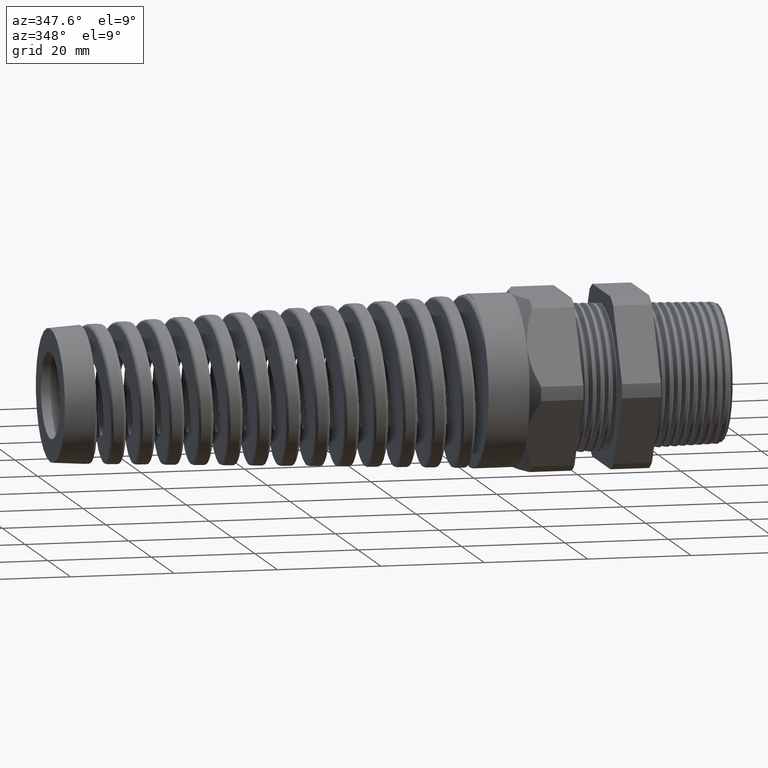
[diagram: clean part render]
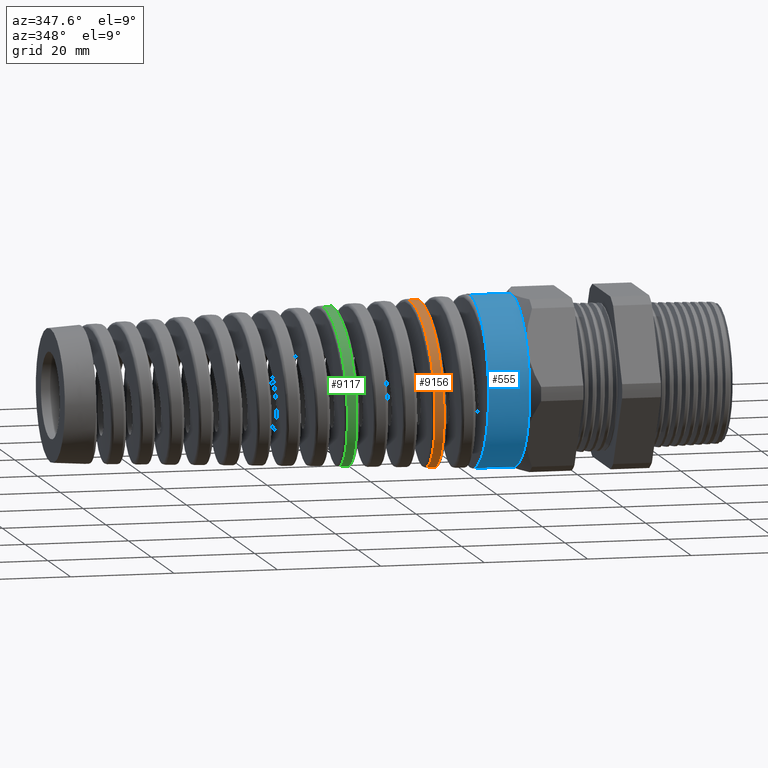
[diagram: same view with three faces highlighted in distinct colors, each labeled with its STEP entity id]
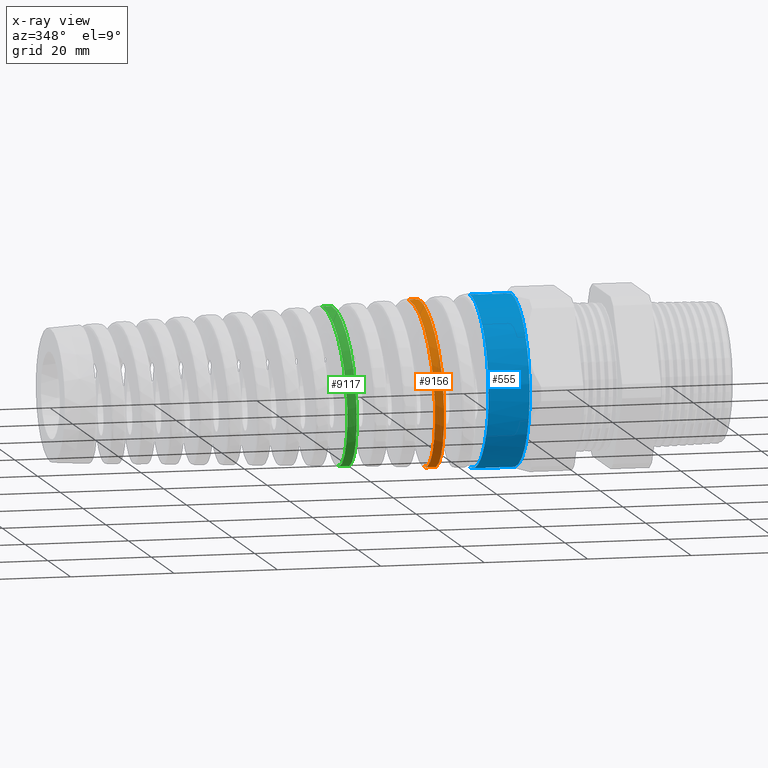
[diagram: x-ray of the same camera — body ghosted, the three highlighted faces saturated]
A machine part, auxiliary view with three faces highlighted in distinct colors.
The next image is the same camera in x-ray (body ghosted, the three faces saturated) — at least one of them is partly hidden behind the body in this view.
Their STEP definitions:

[orange] entity #9156 — the highlighted conical surface has half-angle 2.5 deg.
#8970 = VERTEX_POINT ( 'NONE', #12563 ) ;
#8991 = VERTEX_POINT ( 'NONE', #12755 ) ;
#9030 = EDGE_CURVE ( 'NONE', #9076, #9077, #13120, .T. ) ;
#9076 = VERTEX_POINT ( 'NONE', #13432 ) ;
#9077 = VERTEX_POINT ( 'NONE', #13431 ) ;
#9079 = EDGE_CURVE ( 'NONE', #8970, #8991, #13545, .T. ) ;
#9156 = ADVANCED_FACE ( 'NONE', ( #14259 ), #14289, .T. ) ;
#9157 = EDGE_LOOP ( 'NONE', ( #9158, #9159, #9162, #9163 ) ) ;
#9158 = ORIENTED_EDGE ( 'NONE', *, *, #9030, .F. ) ;
#9159 = ORIENTED_EDGE ( 'NONE', *, *, #9160, .T. ) ;
#9160 = EDGE_CURVE ( 'NONE', #9076, #8970, #14365, .T. ) ;
#9162 = ORIENTED_EDGE ( 'NONE', *, *, #9079, .T. ) ;
#9163 = ORIENTED_EDGE ( 'NONE', *, *, #9164, .T. ) ;
#9164 = EDGE_CURVE ( 'NONE', #8991, #9077, #14402, .T. ) ;
#12563 = CARTESIAN_POINT ( 'NONE',  ( -1.958930698565917000, 4.707388627406056900E-015, -0.6312724812582052300 ) ) ;
#12755 = CARTESIAN_POINT ( 'NONE',  ( -1.890555728699595800, 6.316411324171828600E-016, -0.6342577969139099300 ) ) ;
#13117 = DIRECTION ( 'NONE',  ( 0.9990482215818576900, 5.341834311772761800E-018, 0.04361938736533631200 ) ) ;
#13118 = VECTOR ( 'NONE', #13117, 39.37007874015748100 ) ;
#13119 = CARTESIAN_POINT ( 'NONE',  ( -1.530000000000000000, 7.960204194457796700E-017, 0.6500000000000000200 ) ) ;
#13120 = LINE ( 'NONE', #13119, #13118 ) ;
#13431 = CARTESIAN_POINT ( 'NONE',  ( -2.000412960044929200, -6.592135627195211400E-013, 0.6294613266080539800 ) ) ;
#13432 = CARTESIAN_POINT ( 'NONE',  ( -2.069110531029798600, 5.280273696233599700E-013, 0.6264619258833302700 ) ) ;
#13542 = DIRECTION ( 'NONE',  ( 0.9990482215818576900, 0.0000000000000000000, -0.04361938736533631200 ) ) ;
#13543 = VECTOR ( 'NONE', #13542, 39.37007874015748100 ) ;
#13544 = CARTESIAN_POINT ( 'NONE',  ( -1.530000000000000000, 0.0000000000000000000, -0.6500000000000000200 ) ) ;
#13545 = LINE ( 'NONE', #13544, #13543 ) ;
#14259 = FACE_OUTER_BOUND ( 'NONE', #9157, .T. ) ;
#14285 = DIRECTION ( 'NONE',  ( 0.0000000000000000000, 0.0000000000000000000, -1.000000000000000000 ) ) ;
#14286 = DIRECTION ( 'NONE',  ( 1.000000000000000000, 0.0000000000000000000, 0.0000000000000000000 ) ) ;
#14287 = CARTESIAN_POINT ( 'NONE',  ( -1.530000000000000000, 0.0000000000000000000, 0.0000000000000000000 ) ) ;
#14288 = AXIS2_PLACEMENT_3D ( 'NONE', #14287, #14286, #14285 ) ;
#14289 = CONICAL_SURFACE ( 'NONE', #14288, 0.6500000000000000200, 0.04363323129985854900 ) ;
#14322 = CARTESIAN_POINT ( 'NONE',  ( -1.970366705580078400, -0.2026086189763456900, -0.5987526755416207000 ) ) ;
#14323 = CARTESIAN_POINT ( 'NONE',  ( -1.973798796351883700, -0.2593925235792374200, -0.5751707168041528800 ) ) ;
#14324 = CARTESIAN_POINT ( 'NONE',  ( -1.974944391652800000, -0.2779688656980096600, -0.5663769778908044300 ) ) ;
#14325 = CARTESIAN_POINT ( 'NONE',  ( -1.977244264166441800, -0.3144007408641184600, -0.5468776079463502100 ) ) ;
#14326 = CARTESIAN_POINT ( 'NONE',  ( -1.978400485899685800, -0.3322781286135868500, -0.5361420015431203100 ) ) ;
#14327 = CARTESIAN_POINT ( 'NONE',  ( -1.981829454871312000, -0.3836467946678344700, -0.5017540686698129800 ) ) ;
#14328 = CARTESIAN_POINT ( 'NONE',  ( -1.984087722302071900, -0.4153044620572304300, -0.4757443521122573500 ) ) ;
#14329 = CARTESIAN_POINT ( 'NONE',  ( -1.987514047835669400, -0.4589279099394739100, -0.4321328756890627200 ) ) ;
#14330 = CARTESIAN_POINT ( 'NONE',  ( -1.988667307965329900, -0.4728746718844868400, -0.4167571673759178900 ) ) ;
#14331 = CARTESIAN_POINT ( 'NONE',  ( -1.990976802450795400, -0.4991668299549774600, -0.3847108412708304900 ) ) ;
#14332 = CARTESIAN_POINT ( 'NONE',  ( -1.992124748351662200, -0.5114244672861011400, -0.3681618371446863700 ) ) ;
#14333 = CARTESIAN_POINT ( 'NONE',  ( -1.995563200947563500, -0.5456115453045896600, -0.3169852889464954700 ) ) ;
#14334 = CARTESIAN_POINT ( 'NONE',  ( -1.997849264186671600, -0.5649795630636179600, -0.2808427063811177500 ) ) ;
#14335 = CARTESIAN_POINT ( 'NONE',  ( -2.001307483199248300, -0.5887626953254853100, -0.2235148638383464000 ) ) ;
#14336 = CARTESIAN_POINT ( 'NONE',  ( -2.002463709344215900, -0.5957796912735092700, -0.2039096332951168800 ) ) ;
#14337 = CARTESIAN_POINT ( 'NONE',  ( -2.004750809816396600, -0.6077351140146802800, -0.1645142119648593800 ) ) ;
#14338 = CARTESIAN_POINT ( 'NONE',  ( -2.007025196508061000, -0.6177045627571399200, -0.1247240943228429300 ) ) ;
#14339 = CARTESIAN_POINT ( 'NONE',  ( -2.009301868193179800, -0.6237581595304196900, -0.08415729064731268500 ) ) ;
#14340 = CARTESIAN_POINT ( 'NONE',  ( -2.011592602547406500, -0.6278255040481913700, -0.04319726055372658700 ) ) ;
#14341 = CARTESIAN_POINT ( 'NONE',  ( -2.012751270878575300, -0.6288638844043780200, -0.02240829257500433600 ) ) ;
#14342 = CARTESIAN_POINT ( 'NONE',  ( -2.016217016166024200, -0.6288817787610110300, 0.03967444468489805100 ) ) ;
#14343 = CARTESIAN_POINT ( 'NONE',  ( -2.018503868536615000, -0.6248466378386952100, 0.08048402867126502900 ) ) ;
#14344 = CARTESIAN_POINT ( 'NONE',  ( -2.021949596791043500, -0.6128791770235484400, 0.1408494993631021200 ) ) ;
#14345 = CARTESIAN_POINT ( 'NONE',  ( -2.023100236183431400, -0.6078971808369888500, 0.1608288568125292300 ) ) ;
#14346 = CARTESIAN_POINT ( 'NONE',  ( -2.025412096484811500, -0.5958862322603042400, 0.2004934883644861900 ) ) ;
#14347 = CARTESIAN_POINT ( 'NONE',  ( -2.026566865879292600, -0.5888868870238649400, 0.2200463738172486700 ) ) ;
#14348 = CARTESIAN_POINT ( 'NONE',  ( -2.029999231315115600, -0.5652757219325481600, 0.2770412603802301400 ) ) ;
#14349 = CARTESIAN_POINT ( 'NONE',  ( -2.032265588777614000, -0.5459739875589030300, 0.3131825426881985100 ) ) ;
#14350 = CARTESIAN_POINT ( 'NONE',  ( -2.035712439806290200, -0.5116471722228780300, 0.3645893550114901500 ) ) ;
#14351 = CARTESIAN_POINT ( 'NONE',  ( -2.036875596136789000, -0.4992261457261625300, 0.3813398266785633100 ) ) ;
#14352 = CARTESIAN_POINT ( 'NONE',  ( -2.039187075928885500, -0.4729970276531412800, 0.4132721852677342900 ) ) ;
#14353 = CARTESIAN_POINT ( 'NONE',  ( -2.040337208739956900, -0.4591812147032842100, 0.4284889924853093100 ) ) ;
#14354 = CARTESIAN_POINT ( 'NONE',  ( -2.043785041981874600, -0.4156804638701175900, 0.4719440680703081400 ) ) ;
#14355 = CARTESIAN_POINT ( 'NONE',  ( -2.046079954125362000, -0.3839623237229014600, 0.4980085115932666500 ) ) ;
#14356 = CARTESIAN_POINT ( 'NONE',  ( -2.050718110655178200, -0.3148773917893911700, 0.5440934484020651900 ) ) ;
#14357 = CARTESIAN_POINT ( 'NONE',  ( -2.052997393807910200, -0.2785342371168184100, 0.5634132977116137500 ) ) ;
#14358 = CARTESIAN_POINT ( 'NONE',  ( -2.056423923930004200, -0.2217136022889058500, 0.5868660663867316700 ) ) ;
#14359 = CARTESIAN_POINT ( 'NONE',  ( -2.057568226468049500, -0.2023706370278554600, 0.5937660340004610200 ) ) ;
#14360 = CARTESIAN_POINT ( 'NONE',  ( -2.059874049162550700, -0.1628625355781478900, 0.6056909638474965400 ) ) ;
#14361 = CARTESIAN_POINT ( 'NONE',  ( -2.061040348768217600, -0.1426120603430446600, 0.6107237570056561800 ) ) ;
#14362 = CARTESIAN_POINT ( 'NONE',  ( -2.064509134330073400, -0.08188557199571804000, 0.6226582738036048300 ) ) ;
#14363 = CARTESIAN_POINT ( 'NONE',  ( -2.066803116654560000, -0.04109382389174452000, 0.6265626697706683200 ) ) ;
#14364 = CARTESIAN_POINT ( 'NONE',  ( -2.069110531029798600, 5.280273696233599700E-013, 0.6264619258833302700 ) ) ;
#14365 = B_SPLINE_CURVE_WITH_KNOTS ( 'NONE', 3,
 ( #14364, #14363, #14362, #14361, #14360, #14359, #14358, #14357, #14356, #14355, #14354, #14353, #14352, #14351, #14350, #14349, #14348, #14347, #14346, #14345, #14344, #14343, #14342, #14341, #14340, #14339, #14338, #14337, #14336, #14335, #14334, #14333, #14332, #14331, #14330, #14329, #14328, #14327, #14326, #14325, #14324, #14323, #14322, #14406, #14405, #14404, #14403 ),
 .UNSPECIFIED., .F., .F.,
 ( 4, 2, 2, 2, 2, 2, 2, 2, 2, 2, 2, 2, 2, 1, 2, 2, 2, 2, 2, 2, 2, 2, 2, 4 ),
 ( 1.045933138598378600, 1.049108973620190200, 1.050696891131095900, 1.052284808642001800, 1.055460643663813400, 1.058636478685625000, 1.060224396196530700, 1.061812313707436700, 1.064988148729248300, 1.066576066240154000, 1.068163983751059900, 1.071339818772871500, 1.072927736283777200, 1.074515653794682900, 1.076103571305588900, 1.077691488816494600, 1.080867323838306200, 1.082455241349212100, 1.084043158860117800, 1.087218993881929400, 1.088806911392835400, 1.090394828903741100, 1.093570663925552700, 1.096746498947364300 ),
 .UNSPECIFIED. ) ;
#14366 = CARTESIAN_POINT ( 'NONE',  ( -1.970562705801800900, -0.4765000843964577500, 0.4153762777832686900 ) ) ;
#14367 = CARTESIAN_POINT ( 'NONE',  ( -1.968282250384741000, -0.5025975682315220200, 0.3835163656670446100 ) ) ;
#14368 = CARTESIAN_POINT ( 'NONE',  ( -1.964842432571728000, -0.5369495820402446800, 0.3320981115935040000 ) ) ;
#14369 = CARTESIAN_POINT ( 'NONE',  ( -1.963692950505799600, -0.5475955112490120700, 0.3143496200701861300 ) ) ;
#14370 = CARTESIAN_POINT ( 'NONE',  ( -1.961382306133006700, -0.5672254873906389400, 0.2775952341002571000 ) ) ;
#14371 = CARTESIAN_POINT ( 'NONE',  ( -1.960232707072490500, -0.5761070858547241400, 0.2587663578039812700 ) ) ;
#14372 = CARTESIAN_POINT ( 'NONE',  ( -1.956812093121506100, -0.5997616948654612700, 0.2015255576855307700 ) ) ;
#14373 = CARTESIAN_POINT ( 'NONE',  ( -1.954554879205538700, -0.6116981679515918200, 0.1621341146499689900 ) ) ;
#14374 = CARTESIAN_POINT ( 'NONE',  ( -1.951122530098133200, -0.6237991934218509700, 0.1011880733774773200 ) ) ;
#14375 = CARTESIAN_POINT ( 'NONE',  ( -1.949965005306098800, -0.6268620424694730800, 0.08045687783462438000 ) ) ;
#14376 = CARTESIAN_POINT ( 'NONE',  ( -1.947668160475235100, -0.6308890503866398900, 0.03917952530085143400 ) ) ;
#14377 = CARTESIAN_POINT ( 'NONE',  ( -1.946525113900075200, -0.6318765564042669900, 0.01856848894774905400 ) ) ;
#14378 = CARTESIAN_POINT ( 'NONE',  ( -1.943097258171766000, -0.6318292718442412000, -0.04318272985030284500 ) ) ;
#14379 = CARTESIAN_POINT ( 'NONE',  ( -1.940812169316893400, -0.6278117732448740300, -0.08425441063127280000 ) ) ;
#14380 = CARTESIAN_POINT ( 'NONE',  ( -1.936193576435572700, -0.6114787009437732100, -0.1661179737491833300 ) ) ;
#14381 = CARTESIAN_POINT ( 'NONE',  ( -1.933934088797981900, -0.5994327368124838800, -0.2055708955562582100 ) ) ;
#14382 = CARTESIAN_POINT ( 'NONE',  ( -1.930532539587360700, -0.5757840575522784600, -0.2626182729404777900 ) ) ;
#14383 = CARTESIAN_POINT ( 'NONE',  ( -1.929396857085693900, -0.5669643302358338100, -0.2812761167963772100 ) ) ;
#14384 = CARTESIAN_POINT ( 'NONE',  ( -1.927108681040727400, -0.5474091835889991500, -0.3178590759847684800 ) ) ;
#14385 = CARTESIAN_POINT ( 'NONE',  ( -1.925952824695128300, -0.5366309848863191100, -0.3358286741947692500 ) ) ;
#14386 = CARTESIAN_POINT ( 'NONE',  ( -1.922516979729501400, -0.5020940367715098800, -0.3874682124596479100 ) ) ;
#14387 = CARTESIAN_POINT ( 'NONE',  ( -1.920244108478053000, -0.4759753356215641900, -0.4192766156998938800 ) ) ;
#14388 = CARTESIAN_POINT ( 'NONE',  ( -1.916810786602148900, -0.4322011757774125200, -0.4630966925417010500 ) ) ;
#14389 = CARTESIAN_POINT ( 'NONE',  ( -1.915658852116123300, -0.4167843384690930700, -0.4770938988219422000 ) ) ;
#14390 = CARTESIAN_POINT ( 'NONE',  ( -1.913358829338516200, -0.3845872456112265400, -0.5035351024177439100 ) ) ;
#14391 = CARTESIAN_POINT ( 'NONE',  ( -1.912220415330519600, -0.3679627311866225900, -0.5158606808322850900 ) ) ;
#14392 = CARTESIAN_POINT ( 'NONE',  ( -1.908817921602590900, -0.3165620058322016800, -0.5502363706851850500 ) ) ;
#14393 = CARTESIAN_POINT ( 'NONE',  ( -1.906566369453998500, -0.2802729120310286600, -0.5697097795886600900 ) ) ;
#14394 = CARTESIAN_POINT ( 'NONE',  ( -1.903134291035428700, -0.2227421453692705600, -0.5936361617859123900 ) ) ;
#14395 = CARTESIAN_POINT ( 'NONE',  ( -1.901981352638060200, -0.2030436125258310300, -0.6007092059810293900 ) ) ;
#14396 = CARTESIAN_POINT ( 'NONE',  ( -1.899696551499076700, -0.1634698541189652200, -0.6127661207369754500 ) ) ;
#14397 = CARTESIAN_POINT ( 'NONE',  ( -1.897419998099724400, -0.1235059987296587400, -0.6228300228156133900 ) ) ;
#14398 = CARTESIAN_POINT ( 'NONE',  ( -1.895141353462950400, -0.08277529817580141200, -0.6289707997150904000 ) ) ;
#14399 = CARTESIAN_POINT ( 'NONE',  ( -1.892854580922781200, -0.04165669996339276700, -0.6331250730874865600 ) ) ;
#14400 = CARTESIAN_POINT ( 'NONE',  ( -1.891701683773648000, -0.02079971279709954800, -0.6342077634348461900 ) ) ;
#14401 = CARTESIAN_POINT ( 'NONE',  ( -1.890555728699595800, 6.316411324171828600E-016, -0.6342577969139099300 ) ) ;
#14402 = B_SPLINE_CURVE_WITH_KNOTS ( 'NONE', 3,
 ( #14401, #14400, #14399, #14398, #14397, #14396, #14395, #14394, #14393, #14392, #14391, #14390, #14389, #14388, #14387, #14386, #14385, #14384, #14383, #14382, #14381, #14380, #14379, #14378, #14377, #14376, #14375, #14374, #14373, #14372, #14371, #14370, #14369, #14368, #14367, #14366, #14448, #14447, #14446, #14445, #14444, #14443, #14442, #14441, #14440, #14439, #14438, #14437, #14436, #14435 ),
 .UNSPECIFIED., .F., .F.,
 ( 4, 2, 1, 2, 2, 2, 2, 2, 2, 2, 2, 2, 2, 2, 2, 2, 2, 2, 2, 2, 1, 2, 2, 2, 2, 4 ),
 ( 0.1333782927639132200, 0.1349706807159501700, 0.1365630686679871200, 0.1381554566200240700, 0.1397478445720610200, 0.1429326204761349500, 0.1445250084281719000, 0.1461173963802088500, 0.1493021722842827500, 0.1508945602363197000, 0.1524869481883566700, 0.1556717240924305700, 0.1588564999965044700, 0.1604488879485414500, 0.1620412759005783700, 0.1652260518046523000, 0.1668184397566892500, 0.1684108277087262000, 0.1715956036128001000, 0.1731879915648370500, 0.1747803795168740000, 0.1763727674689109500, 0.1779651554209479000, 0.1811499313250218000, 0.1827423192770587800, 0.1843347072290957300 ),
 .UNSPECIFIED. ) ;
#14403 = CARTESIAN_POINT ( 'NONE',  ( -1.958930698565917000, 4.707388627406056900E-015, -0.6312724812582052300 ) ) ;
#14404 = CARTESIAN_POINT ( 'NONE',  ( -1.961198789523230100, -0.04097636029582271000, -0.6311734542684073200 ) ) ;
#14405 = CARTESIAN_POINT ( 'NONE',  ( -1.963469453227702400, -0.08195584778243995800, -0.6271054537417147800 ) ) ;
#14406 = CARTESIAN_POINT ( 'NONE',  ( -1.968086248576229200, -0.1633562801228417300, -0.6107686645396169800 ) ) ;
#14435 = CARTESIAN_POINT ( 'NONE',  ( -2.000412960044929200, -6.592135627195211400E-013, 0.6294613266080539800 ) ) ;
#14436 = CARTESIAN_POINT ( 'NONE',  ( -1.999268675063977000, -0.02065652259122164100, 0.6295112871692566400 ) ) ;
#14437 = CARTESIAN_POINT ( 'NONE',  ( -1.998113291414306900, -0.04149651587174736000, 0.6285373479339411200 ) ) ;
#14438 = CARTESIAN_POINT ( 'NONE',  ( -1.995801896999818400, -0.08292891329156078200, 0.6245246447460179900 ) ) ;
#14439 = CARTESIAN_POINT ( 'NONE',  ( -1.994653186681758700, -0.1033904364771828400, 0.6215088124967248500 ) ) ;
#14440 = CARTESIAN_POINT ( 'NONE',  ( -1.991212006933419800, -0.1640329631994876500, 0.6095235286818093700 ) ) ;
#14441 = CARTESIAN_POINT ( 'NONE',  ( -1.988923575606346800, -0.2034789831401109500, 0.5976444355835495200 ) ) ;
#14442 = CARTESIAN_POINT ( 'NONE',  ( -1.985456729368703300, -0.2611322118099911300, 0.5738347710794410300 ) ) ;
#14443 = CARTESIAN_POINT ( 'NONE',  ( -1.984300103397316700, -0.2800285738398381500, 0.5649061208673854500 ) ) ;
#14444 = CARTESIAN_POINT ( 'NONE',  ( -1.982012604653093900, -0.3164916105031139200, 0.5454299887467318800 ) ) ;
#14445 = CARTESIAN_POINT ( 'NONE',  ( -1.979738782556263600, -0.3518296879929746500, 0.5242545477433204800 ) ) ;
#14446 = CARTESIAN_POINT ( 'NONE',  ( -1.977464177183787800, -0.3849470794732047800, 0.4997274420177715300 ) ) ;
#14447 = CARTESIAN_POINT ( 'NONE',  ( -1.975175851561906200, -0.4169365820118353700, 0.4734993628410406100 ) ) ;
#14448 = CARTESIAN_POINT ( 'NONE',  ( -1.974018328828255100, -0.4324480445766877300, 0.4594494796755322400 ) ) ;

[blue] entity #555 — the highlighted cylindrical surface (partial cylindrical patch) has radius 16.51 mm, axis along (1, 0, 0).
#555 = ADVANCED_FACE ( 'NONE', ( #1103 ), #1317, .T. ) ;
#586 = EDGE_CURVE ( 'NONE', #20455, #5202, #1275, .T. ) ;
#607 = ORIENTED_EDGE ( 'NONE', *, *, #671, .F. ) ;
#616 = ORIENTED_EDGE ( 'NONE', *, *, #667, .F. ) ;
#667 = EDGE_CURVE ( 'NONE', #5193, #18178, #1258, .T. ) ;
#671 = EDGE_CURVE ( 'NONE', #18178, #20455, #1254, .T. ) ;
#1027 = ORIENTED_EDGE ( 'NONE', *, *, #5192, .F. ) ;
#1028 = EDGE_LOOP ( 'NONE', ( #1027, #11837, #15251, #15293, #607, #616 ) ) ;
#1103 = FACE_OUTER_BOUND ( 'NONE', #1028, .T. ) ;
#1250 = DIRECTION ( 'NONE',  ( 0.0000000000000000000, 0.0000000000000000000, -1.000000000000000000 ) ) ;
#1251 = DIRECTION ( 'NONE',  ( 1.000000000000000000, 0.0000000000000000000, 0.0000000000000000000 ) ) ;
#1252 = CARTESIAN_POINT ( 'NONE',  ( -1.293779527559055300, 0.0000000000000000000, 0.0000000000000000000 ) ) ;
#1253 = AXIS2_PLACEMENT_3D ( 'NONE', #1252, #1251, #1250 ) ;
#1254 = CIRCLE ( 'NONE', #1253, 0.6500000000000000200 ) ;
#1255 = DIRECTION ( 'NONE',  ( 0.0000000000000000000, 0.0000000000000000000, -1.000000000000000000 ) ) ;
#1256 = DIRECTION ( 'NONE',  ( 1.000000000000000000, 0.0000000000000000000, 0.0000000000000000000 ) ) ;
#1257 = AXIS2_PLACEMENT_3D ( 'NONE', #1263, #1256, #1255 ) ;
#1258 = CIRCLE ( 'NONE', #1257, 0.6500000000000000200 ) ;
#1263 = CARTESIAN_POINT ( 'NONE',  ( -1.293779527559055300, 0.0000000000000000000, 0.0000000000000000000 ) ) ;
#1271 = DIRECTION ( 'NONE',  ( 0.0000000000000000000, 0.0000000000000000000, -1.000000000000000000 ) ) ;
#1272 = DIRECTION ( 'NONE',  ( 1.000000000000000000, 0.0000000000000000000, 0.0000000000000000000 ) ) ;
#1273 = CARTESIAN_POINT ( 'NONE',  ( -1.293779527559055300, 0.0000000000000000000, 0.0000000000000000000 ) ) ;
#1274 = AXIS2_PLACEMENT_3D ( 'NONE', #1273, #1272, #1271 ) ;
#1275 = CIRCLE ( 'NONE', #1274, 0.6500000000000000200 ) ;
#1313 = DIRECTION ( 'NONE',  ( 0.0000000000000000000, 0.0000000000000000000, -1.000000000000000000 ) ) ;
#1314 = DIRECTION ( 'NONE',  ( 1.000000000000000000, 0.0000000000000000000, 0.0000000000000000000 ) ) ;
#1315 = CARTESIAN_POINT ( 'NONE',  ( 0.0000000000000000000, 0.0000000000000000000, 0.0000000000000000000 ) ) ;
#1316 = AXIS2_PLACEMENT_3D ( 'NONE', #1315, #1314, #1313 ) ;
#1317 = CYLINDRICAL_SURFACE ( 'NONE', #1316, 0.6500000000000000200 ) ;
#5138 = VERTEX_POINT ( 'NONE', #11623 ) ;
#5139 = VERTEX_POINT ( 'NONE', #11622 ) ;
#5192 = EDGE_CURVE ( 'NONE', #5138, #5193, #11718, .T. ) ;
#5193 = VERTEX_POINT ( 'NONE', #11714 ) ;
#5202 = VERTEX_POINT ( 'NONE', #11759 ) ;
#5204 = EDGE_CURVE ( 'NONE', #5139, #5202, #11758, .T. ) ;
#6616 = CARTESIAN_POINT ( 'NONE',  ( -1.293779527559055300, -0.5629165124598851700, -0.3250000000000002300 ) ) ;
#11622 = CARTESIAN_POINT ( 'NONE',  ( -1.606986927084339500, 0.0000000000000000000, -0.6500000000000000200 ) ) ;
#11623 = CARTESIAN_POINT ( 'NONE',  ( -1.606986927084339500, 7.960204194457796700E-017, 0.6500000000000000200 ) ) ;
#11714 = CARTESIAN_POINT ( 'NONE',  ( -1.293779527559055300, 0.0000000000000000000, 0.6500000000000000200 ) ) ;
#11715 = DIRECTION ( 'NONE',  ( 1.000000000000000000, 0.0000000000000000000, 0.0000000000000000000 ) ) ;
#11716 = VECTOR ( 'NONE', #11715, 39.37007874015748100 ) ;
#11717 = CARTESIAN_POINT ( 'NONE',  ( 0.0000000000000000000, 7.960204194457796700E-017, 0.6500000000000000200 ) ) ;
#11718 = LINE ( 'NONE', #11717, #11716 ) ;
#11755 = DIRECTION ( 'NONE',  ( 1.000000000000000000, 0.0000000000000000000, 0.0000000000000000000 ) ) ;
#11756 = VECTOR ( 'NONE', #11755, 39.37007874015748100 ) ;
#11757 = CARTESIAN_POINT ( 'NONE',  ( 0.0000000000000000000, 0.0000000000000000000, -0.6500000000000000200 ) ) ;
#11758 = LINE ( 'NONE', #11757, #11756 ) ;
#11759 = CARTESIAN_POINT ( 'NONE',  ( -1.293779527559055300, 0.0000000000000000000, -0.6500000000000000200 ) ) ;
#11837 = ORIENTED_EDGE ( 'NONE', *, *, #15303, .F. ) ;
#14622 = DIRECTION ( 'NONE',  ( 0.0000000000000000000, 0.0000000000000000000, 1.000000000000000000 ) ) ;
#14623 = DIRECTION ( 'NONE',  ( -1.000000000000000000, 0.0000000000000000000, 0.0000000000000000000 ) ) ;
#14923 = AXIS2_PLACEMENT_3D ( 'NONE', #14931, #14623, #14622 ) ;
#14924 = CIRCLE ( 'NONE', #14923, 0.6500000000000000200 ) ;
#14931 = CARTESIAN_POINT ( 'NONE',  ( -1.606986927084339500, 0.0000000000000000000, 0.0000000000000000000 ) ) ;
#15127 = CARTESIAN_POINT ( 'NONE',  ( -1.293779527559055300, -0.5629165124598853900, 0.3249999999999999600 ) ) ;
#15251 = ORIENTED_EDGE ( 'NONE', *, *, #5204, .T. ) ;
#15293 = ORIENTED_EDGE ( 'NONE', *, *, #586, .F. ) ;
#15303 = EDGE_CURVE ( 'NONE', #5139, #5138, #14924, .T. ) ;
#18178 = VERTEX_POINT ( 'NONE', #15127 ) ;
#20455 = VERTEX_POINT ( 'NONE', #6616 ) ;

[green] entity #9117 — the highlighted conical surface has half-angle 2.5 deg.
#4873 = VERTEX_POINT ( 'NONE', #11065 ) ;
#6664 = EDGE_CURVE ( 'NONE', #6803, #6787, #11824, .T. ) ;
#6787 = VERTEX_POINT ( 'NONE', #11814 ) ;
#6803 = VERTEX_POINT ( 'NONE', #11812 ) ;
#8978 = VERTEX_POINT ( 'NONE', #12749 ) ;
#8997 = EDGE_CURVE ( 'NONE', #4873, #8978, #12904, .T. ) ;
#9117 = ADVANCED_FACE ( 'NONE', ( #13786 ), #13912, .T. ) ;
#9118 = EDGE_LOOP ( 'NONE', ( #9119, #9120, #9122, #9123 ) ) ;
#9119 = ORIENTED_EDGE ( 'NONE', *, *, #6664, .F. ) ;
#9120 = ORIENTED_EDGE ( 'NONE', *, *, #9121, .T. ) ;
#9121 = EDGE_CURVE ( 'NONE', #6803, #4873, #13907, .T. ) ;
#9122 = ORIENTED_EDGE ( 'NONE', *, *, #8997, .T. ) ;
#9123 = ORIENTED_EDGE ( 'NONE', *, *, #9167, .T. ) ;
#9167 = EDGE_CURVE ( 'NONE', #8978, #6787, #14433, .T. ) ;
#11065 = CARTESIAN_POINT ( 'NONE',  ( -2.619952751638825500, 2.171906865430290500E-015, -0.6024116351377212200 ) ) ;
#11812 = CARTESIAN_POINT ( 'NONE',  ( -2.730106989645701500, -6.763316884020677900E-013, 0.5976021972409724100 ) ) ;
#11814 = CARTESIAN_POINT ( 'NONE',  ( -2.659414506500021000, -1.071851655822413900E-012, 0.6006886977116570000 ) ) ;
#11816 = DIRECTION ( 'NONE',  ( 0.9990482215818576900, 5.341834311772761800E-018, 0.04361938736533631200 ) ) ;
#11817 = VECTOR ( 'NONE', #11816, 39.37007874015748100 ) ;
#11818 = CARTESIAN_POINT ( 'NONE',  ( -1.530000000000000000, 7.960204194457796700E-017, 0.6500000000000000200 ) ) ;
#11824 = LINE ( 'NONE', #11818, #11817 ) ;
#12749 = CARTESIAN_POINT ( 'NONE',  ( -2.549561430387900200, 9.223176720431594000E-016, -0.6054849865961127200 ) ) ;
#12901 = DIRECTION ( 'NONE',  ( 0.9990482215818576900, 0.0000000000000000000, -0.04361938736533631200 ) ) ;
#12902 = VECTOR ( 'NONE', #12901, 39.37007874015748100 ) ;
#12903 = CARTESIAN_POINT ( 'NONE',  ( -1.530000000000000000, 0.0000000000000000000, -0.6500000000000000200 ) ) ;
#12904 = LINE ( 'NONE', #12903, #12902 ) ;
#13786 = FACE_OUTER_BOUND ( 'NONE', #9118, .T. ) ;
#13877 = CARTESIAN_POINT ( 'NONE',  ( -2.666900785152115400, -0.5845836976749520000, -0.1381361012340753500 ) ) ;
#13878 = CARTESIAN_POINT ( 'NONE',  ( -2.670331488036602700, -0.5960994597059423600, -0.08038230722208256100 ) ) ;
#13879 = CARTESIAN_POINT ( 'NONE',  ( -2.672594349638163900, -0.5999653882017093000, -0.04148560714283782600 ) ) ;
#13880 = CARTESIAN_POINT ( 'NONE',  ( -2.676032286530283200, -0.6000310502793760900, 0.01744767124655669000 ) ) ;
#13881 = CARTESIAN_POINT ( 'NONE',  ( -2.677191958559521600, -0.5990767274331175700, 0.03730137912160908600 ) ) ;
#13882 = CARTESIAN_POINT ( 'NONE',  ( -2.679500715534203000, -0.5952308199425252500, 0.07657449978433468500 ) ) ;
#13883 = CARTESIAN_POINT ( 'NONE',  ( -2.680649086554684600, -0.5923544934849840300, 0.09598253239609612400 ) ) ;
#13884 = CARTESIAN_POINT ( 'NONE',  ( -2.684091144967143600, -0.5809389180190187600, 0.1535377920978008300 ) ) ;
#13885 = CARTESIAN_POINT ( 'NONE',  ( -2.686382643668351100, -0.5696400077396385200, 0.1910225952809607400 ) ) ;
#13886 = CARTESIAN_POINT ( 'NONE',  ( -2.689854953758881200, -0.5469643789635843000, 0.2458726396765651100 ) ) ;
#13887 = CARTESIAN_POINT ( 'NONE',  ( -2.691008680082733800, -0.5385056095753886200, 0.2637572970856977300 ) ) ;
#13888 = CARTESIAN_POINT ( 'NONE',  ( -2.693297225428303400, -0.5200217479880605600, 0.2983518541800071500 ) ) ;
#13889 = CARTESIAN_POINT ( 'NONE',  ( -2.694436100413369200, -0.5099703678362004200, 0.3151261945640139200 ) ) ;
#13890 = CARTESIAN_POINT ( 'NONE',  ( -2.696716749377168700, -0.4882647845379963800, 0.3476384352850253600 ) ) ;
#13891 = CARTESIAN_POINT ( 'NONE',  ( -2.697858505552706500, -0.4766106172372653300, 0.3633763600403727700 ) ) ;
#13892 = CARTESIAN_POINT ( 'NONE',  ( -2.700157903383939600, -0.4516691942426684400, 0.3937952953478453500 ) ) ;
#13893 = CARTESIAN_POINT ( 'NONE',  ( -2.701321564088416900, -0.4383051229203389100, 0.4085447688781993500 ) ) ;
#13894 = CARTESIAN_POINT ( 'NONE',  ( -2.704786620469868700, -0.3965005657897253100, 0.4503228493303562100 ) ) ;
#13895 = CARTESIAN_POINT ( 'NONE',  ( -2.707076332139592500, -0.3662537332420582900, 0.4751048777171709700 ) ) ;
#13896 = CARTESIAN_POINT ( 'NONE',  ( -2.710531636740668700, -0.3173779459034432600, 0.5077456804968413200 ) ) ;
#13897 = CARTESIAN_POINT ( 'NONE',  ( -2.711686271611344300, -0.3004976153892758300, 0.5178652750227555900 ) ) ;
#13898 = CARTESIAN_POINT ( 'NONE',  ( -2.714008710112636000, -0.2655179412943728900, 0.5365278524035784800 ) ) ;
#13899 = CARTESIAN_POINT ( 'NONE',  ( -2.715158555367219500, -0.2477051243205951300, 0.5449173754602643100 ) ) ;
#13900 = CARTESIAN_POINT ( 'NONE',  ( -2.718593677182406400, -0.1933693493454289300, 0.5673388143159483500 ) ) ;
#13901 = CARTESIAN_POINT ( 'NONE',  ( -2.720865890864830700, -0.1559409159758005900, 0.5786581431154029800 ) ) ;
#13902 = CARTESIAN_POINT ( 'NONE',  ( -2.724327333715942600, -0.09796571084354859000, 0.5901023482266374300 ) ) ;
#13903 = CARTESIAN_POINT ( 'NONE',  ( -2.725493575141395600, -0.07827036216693093700, 0.5929838589644314000 ) ) ;
#13904 = CARTESIAN_POINT ( 'NONE',  ( -2.727804960441601700, -0.03910923375437598500, 0.5967461161970162300 ) ) ;
#13905 = CARTESIAN_POINT ( 'NONE',  ( -2.728955959160050100, -0.01954598414860602600, 0.5976524523172701600 ) ) ;
#13906 = CARTESIAN_POINT ( 'NONE',  ( -2.730106989645701500, -6.763316884020677900E-013, 0.5976021972409724100 ) ) ;
#13907 = B_SPLINE_CURVE_WITH_KNOTS ( 'NONE', 3,
 ( #13906, #13905, #13904, #13903, #13902, #13901, #13900, #13899, #13898, #13897, #13896, #13895, #13894, #13893, #13892, #13891, #13890, #13889, #13888, #13887, #13886, #13885, #13884, #13883, #13882, #13881, #13880, #13879, #13878, #13877, #13953, #13952, #13951, #13950, #13949, #13948, #13947, #13946, #13945, #13944, #13943, #13942, #13941, #13940, #13939, #13938, #13937, #13936, #13935, #13934, #13933 ),
 .UNSPECIFIED., .F., .F.,
 ( 4, 2, 2, 2, 2, 2, 2, 2, 2, 2, 2, 2, 2, 2, 2, 2, 2, 2, 2, 1, 2, 2, 2, 2, 2, 4 ),
 ( 0.7493050061887185400, 0.7508195506110332300, 0.7523340950333479200, 0.7553631838779773000, 0.7568777283002919900, 0.7583922727226066800, 0.7614213615672360500, 0.7629359059895507400, 0.7644504504118654300, 0.7659649948341801200, 0.7674795392564948100, 0.7705086281011241900, 0.7720231725234388800, 0.7735377169457535700, 0.7765668057903829500, 0.7780813502126976400, 0.7795958946350123300, 0.7826249834796417100, 0.7841395279019564000, 0.7856540723242710900, 0.7871686167465857800, 0.7886831611689004700, 0.7917122500135298500, 0.7932267944358445400, 0.7947413388581592300, 0.7977704277027886100 ),
 .UNSPECIFIED. ) ;
#13908 = DIRECTION ( 'NONE',  ( 0.0000000000000000000, 0.0000000000000000000, -1.000000000000000000 ) ) ;
#13909 = DIRECTION ( 'NONE',  ( 1.000000000000000000, 0.0000000000000000000, 0.0000000000000000000 ) ) ;
#13910 = CARTESIAN_POINT ( 'NONE',  ( -1.530000000000000000, 0.0000000000000000000, 0.0000000000000000000 ) ) ;
#13911 = AXIS2_PLACEMENT_3D ( 'NONE', #13910, #13909, #13908 ) ;
#13912 = CONICAL_SURFACE ( 'NONE', #13911, 0.6500000000000000200, 0.04363323129985854900 ) ;
#13933 = CARTESIAN_POINT ( 'NONE',  ( -2.619952751638825500, 2.171906865430290500E-015, -0.6024116351377212200 ) ) ;
#13934 = CARTESIAN_POINT ( 'NONE',  ( -2.622237009984819300, -0.03933361484821704800, -0.6023119022644887200 ) ) ;
#13935 = CARTESIAN_POINT ( 'NONE',  ( -2.624491932296861000, -0.07822861164106705000, -0.5983974451844109600 ) ) ;
#13936 = CARTESIAN_POINT ( 'NONE',  ( -2.627910445219923600, -0.1359138524278982200, -0.5868502908820233400 ) ) ;
#13937 = CARTESIAN_POINT ( 'NONE',  ( -2.629059646049892100, -0.1550940821410904100, -0.5820294042126068500 ) ) ;
#13938 = CARTESIAN_POINT ( 'NONE',  ( -2.631365704939776100, -0.1929490785404138200, -0.5704926272113550700 ) ) ;
#13939 = CARTESIAN_POINT ( 'NONE',  ( -2.632511636659409200, -0.2114454960837525700, -0.5638381932811957800 ) ) ;
#13940 = CARTESIAN_POINT ( 'NONE',  ( -2.635943742562401500, -0.2656810553513703800, -0.5413000479446471400 ) ) ;
#13941 = CARTESIAN_POINT ( 'NONE',  ( -2.638225124390523900, -0.3001782038721436700, -0.5228656359615258000 ) ) ;
#13942 = CARTESIAN_POINT ( 'NONE',  ( -2.641678751851874300, -0.3493745832702530000, -0.4899839405118692800 ) ) ;
#13943 = CARTESIAN_POINT ( 'NONE',  ( -2.642834789154937500, -0.3653393312886610800, -0.4781321437299553300 ) ) ;
#13944 = CARTESIAN_POINT ( 'NONE',  ( -2.645120528496606400, -0.3957060628954977600, -0.4531885442229290400 ) ) ;
#13945 = CARTESIAN_POINT ( 'NONE',  ( -2.647392575438069200, -0.4246991661098626400, -0.4268868918039625500 ) ) ;
#13946 = CARTESIAN_POINT ( 'NONE',  ( -2.649664760554755600, -0.4509868315044350300, -0.3979127061888917400 ) ) ;
#13947 = CARTESIAN_POINT ( 'NONE',  ( -2.651949955648360600, -0.4759038795925436500, -0.3675856367998794300 ) ) ;
#13948 = CARTESIAN_POINT ( 'NONE',  ( -2.653104676536060900, -0.4877296024082550300, -0.3516649396602551900 ) ) ;
#13949 = CARTESIAN_POINT ( 'NONE',  ( -2.656565862485551900, -0.5206744289344397100, -0.3023842448030159600 ) ) ;
#13950 = CARTESIAN_POINT ( 'NONE',  ( -2.658848225806806500, -0.5391078379991902600, -0.2678628553450332400 ) ) ;
#13951 = CARTESIAN_POINT ( 'NONE',  ( -2.662287871871602500, -0.5616145048028636800, -0.2136542688279941500 ) ) ;
#13952 = CARTESIAN_POINT ( 'NONE',  ( -2.663436791134189600, -0.5682533409129793000, -0.1951774023247206900 ) ) ;
#13953 = CARTESIAN_POINT ( 'NONE',  ( -2.665745235401910200, -0.5797540691588626300, -0.1573856957902458900 ) ) ;
#14407 = CARTESIAN_POINT ( 'NONE',  ( -2.603232337262783700, -0.6030815993115876700, -0.02141383159243127200 ) ) ;
#14408 = CARTESIAN_POINT ( 'NONE',  ( -2.602088184472597400, -0.6021160516798694800, -0.04109349685124190400 ) ) ;
#14409 = CARTESIAN_POINT ( 'NONE',  ( -2.599792420702535400, -0.5982230334095931500, -0.08051428194811080500 ) ) ;
#14410 = CARTESIAN_POINT ( 'NONE',  ( -2.598637688917871700, -0.5952765189439063200, -0.1002900243553066000 ) ) ;
#14411 = CARTESIAN_POINT ( 'NONE',  ( -2.595213711791690700, -0.5836686502148421600, -0.1584125177550201600 ) ) ;
#14412 = CARTESIAN_POINT ( 'NONE',  ( -2.592959025434953300, -0.5722419451217839500, -0.1959967968499175800 ) ) ;
#14413 = CARTESIAN_POINT ( 'NONE',  ( -2.589539667327389200, -0.5496107270074812600, -0.2506352811086163800 ) ) ;
#14414 = CARTESIAN_POINT ( 'NONE',  ( -2.588388994569943000, -0.5411055726747514600, -0.2686291314961878300 ) ) ;
#14415 = CARTESIAN_POINT ( 'NONE',  ( -2.586085593909899200, -0.5223623340126759600, -0.3036707062236024800 ) ) ;
#14416 = CARTESIAN_POINT ( 'NONE',  ( -2.584941021028001700, -0.5121989392751897800, -0.3205978081902707300 ) ) ;
#14417 = CARTESIAN_POINT ( 'NONE',  ( -2.581513973665457300, -0.4794057982265463300, -0.3696512970580773700 ) ) ;
#14418 = CARTESIAN_POINT ( 'NONE',  ( -2.579237732031498100, -0.4544948755588330600, -0.4000661806046117400 ) ) ;
#14419 = CARTESIAN_POINT ( 'NONE',  ( -2.575796300241969900, -0.4124403325990956800, -0.4421682043233364800 ) ) ;
#14420 = CARTESIAN_POINT ( 'NONE',  ( -2.574645780327165400, -0.3976522008971548600, -0.4555756545192429200 ) ) ;
#14421 = CARTESIAN_POINT ( 'NONE',  ( -2.572369999677655900, -0.3671491625558704300, -0.4806225752213073600 ) ) ;
#14422 = CARTESIAN_POINT ( 'NONE',  ( -2.570106891635935300, -0.3355685990942913800, -0.5040591148722288800 ) ) ;
#14423 = CARTESIAN_POINT ( 'NONE',  ( -2.567842031700080500, -0.3018657529396624500, -0.5243210780630135300 ) ) ;
#14424 = CARTESIAN_POINT ( 'NONE',  ( -2.565563730292077500, -0.2670876436145465700, -0.5429733197803019400 ) ) ;
#14425 = CARTESIAN_POINT ( 'NONE',  ( -2.564411638299153300, -0.2490608501383923500, -0.5515338634764186400 ) ) ;
#14426 = CARTESIAN_POINT ( 'NONE',  ( -2.560966993489286900, -0.1941019114408891200, -0.5743762322311359900 ) ) ;
#14427 = CARTESIAN_POINT ( 'NONE',  ( -2.558695366814836400, -0.1564886789874155900, -0.5858222405410548100 ) ) ;
#14428 = CARTESIAN_POINT ( 'NONE',  ( -2.555275730611060100, -0.09864887221326969200, -0.5974656315320808800 ) ) ;
#14429 = CARTESIAN_POINT ( 'NONE',  ( -2.554134557326664300, -0.07913054080099547700, -0.6004192449055132400 ) ) ;
#14430 = CARTESIAN_POINT ( 'NONE',  ( -2.551841696356648400, -0.03960309707652304200, -0.6044151762165134200 ) ) ;
#14431 = CARTESIAN_POINT ( 'NONE',  ( -2.550696198354431400, -0.01971637976557306600, -0.6054354415567114700 ) ) ;
#14432 = CARTESIAN_POINT ( 'NONE',  ( -2.549561430387900200, 9.223176720431594000E-016, -0.6054849865961127200 ) ) ;
#14433 = B_SPLINE_CURVE_WITH_KNOTS ( 'NONE', 3,
 ( #14432, #14431, #14430, #14429, #14428, #14427, #14426, #14425, #14424, #14423, #14422, #14421, #14420, #14419, #14418, #14417, #14416, #14415, #14414, #14413, #14412, #14411, #14410, #14409, #14408, #14407, #14484, #14483, #14482, #14481, #14480, #14479, #14478, #14477, #14476, #14475, #14474, #14473, #14472, #14471, #14470, #14469, #14468, #14467, #14466, #14465, #14464, #14463, #14462, #14461 ),
 .UNSPECIFIED., .F., .F.,
 ( 4, 2, 2, 2, 2, 1, 2, 2, 2, 2, 2, 2, 2, 2, 2, 2, 2, 2, 2, 2, 2, 2, 2, 1, 2, 4 ),
 ( 0.4333277367336808000, 0.4348471856597334600, 0.4363666345857861200, 0.4394055324378914300, 0.4409249813639440400, 0.4424444302899966900, 0.4439638792160493500, 0.4454833281421020100, 0.4485222259942073200, 0.4500416749202599300, 0.4515611238463125800, 0.4546000216984179000, 0.4561194706244705600, 0.4576389195505232200, 0.4606778174026285300, 0.4637167152547338500, 0.4652361641807865000, 0.4667556131068391100, 0.4697945109589444200, 0.4713139598849970800, 0.4728334088110497400, 0.4758723066631550500, 0.4773917555892076600, 0.4789112045152603100, 0.4804306534413129700, 0.4819501023673656300 ),
 .UNSPECIFIED. ) ;
#14461 = CARTESIAN_POINT ( 'NONE',  ( -2.659414506500021000, -1.071851655822413900E-012, 0.6006886977116570000 ) ) ;
#14462 = CARTESIAN_POINT ( 'NONE',  ( -2.658258899078066700, -0.01985227466475091700, 0.6007391526212965100 ) ) ;
#14463 = CARTESIAN_POINT ( 'NONE',  ( -2.657098222092301400, -0.03976619447401014800, 0.5997966927260711700 ) ) ;
#14464 = CARTESIAN_POINT ( 'NONE',  ( -2.654796571402065800, -0.07902928992295159300, 0.5959971087947024700 ) ) ;
#14465 = CARTESIAN_POINT ( 'NONE',  ( -2.652503008698557700, -0.1179281090236714800, 0.5902862233219285900 ) ) ;
#14466 = CARTESIAN_POINT ( 'NONE',  ( -2.650209243077159100, -0.1561067325721190200, 0.5808016437181714500 ) ) ;
#14467 = CARTESIAN_POINT ( 'NONE',  ( -2.647909437087749400, -0.1939190733382713500, 0.5693996640633485200 ) ) ;
#14468 = CARTESIAN_POINT ( 'NONE',  ( -2.646750522337114800, -0.2127443758127401900, 0.5626935896507087000 ) ) ;
#14469 = CARTESIAN_POINT ( 'NONE',  ( -2.643302363192203700, -0.2676918443944361100, 0.5399857960479181900 ) ) ;
#14470 = CARTESIAN_POINT ( 'NONE',  ( -2.641039026545244800, -0.3023578966387593900, 0.5214594713872348100 ) ) ;
#14471 = CARTESIAN_POINT ( 'NONE',  ( -2.637615602753591300, -0.3514684105781487000, 0.4887007414911946300 ) ) ;
#14472 = CARTESIAN_POINT ( 'NONE',  ( -2.636469887332854300, -0.3673537313892158400, 0.4769470461635446600 ) ) ;
#14473 = CARTESIAN_POINT ( 'NONE',  ( -2.634156911445471500, -0.3981218976671062100, 0.4517164365927773800 ) ) ;
#14474 = CARTESIAN_POINT ( 'NONE',  ( -2.633002983695238000, -0.4128231522699607500, 0.4383819612896750500 ) ) ;
#14475 = CARTESIAN_POINT ( 'NONE',  ( -2.629559738677242000, -0.4546064615888875100, 0.3965853046246052300 ) ) ;
#14476 = CARTESIAN_POINT ( 'NONE',  ( -2.627276629368662200, -0.4795401571226403100, 0.3662243324209089600 ) ) ;
#14477 = CARTESIAN_POINT ( 'NONE',  ( -2.623829995309157500, -0.5125066052336595400, 0.3168973503339163100 ) ) ;
#14478 = CARTESIAN_POINT ( 'NONE',  ( -2.622672415079008200, -0.5227868570951634800, 0.2997366344546303900 ) ) ;
#14479 = CARTESIAN_POINT ( 'NONE',  ( -2.620382145885062900, -0.5414187137726187400, 0.2648289774428723200 ) ) ;
#14480 = CARTESIAN_POINT ( 'NONE',  ( -2.619245024941374600, -0.5498212884481329400, 0.2470212394219578900 ) ) ;
#14481 = CARTESIAN_POINT ( 'NONE',  ( -2.615836747684594500, -0.5723466875121562300, 0.1925599440138826600 ) ) ;
#14482 = CARTESIAN_POINT ( 'NONE',  ( -2.613564966690079800, -0.5838252238697089200, 0.1548195110633751000 ) ) ;
#14483 = CARTESIAN_POINT ( 'NONE',  ( -2.608942889797587000, -0.5993156325808367500, 0.07671399680261108100 ) ) ;
#14484 = CARTESIAN_POINT ( 'NONE',  ( -2.606661844410303400, -0.6031043161843950800, 0.03753467658620682900 ) ) ;